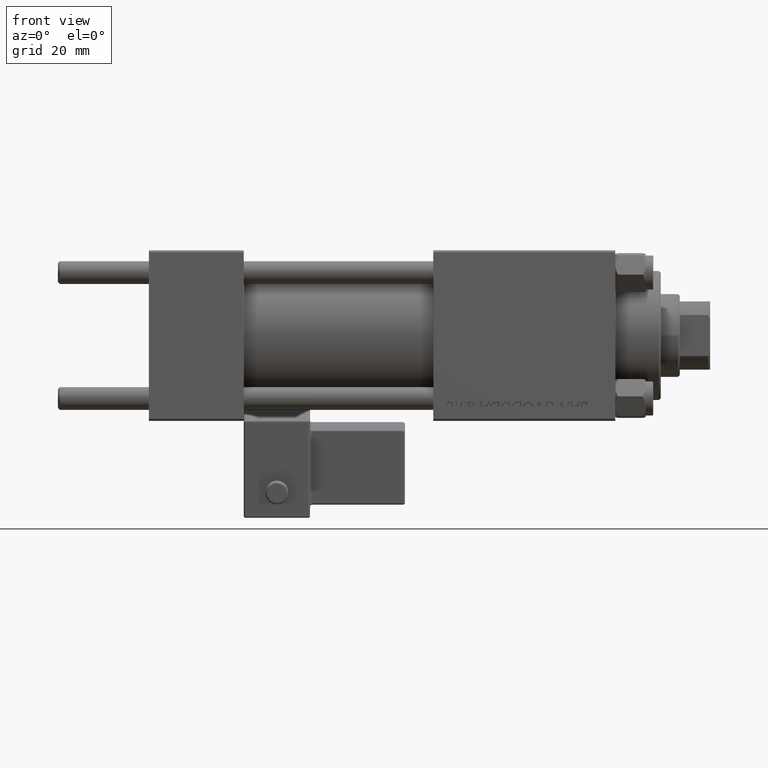
[diagram: clean part render]
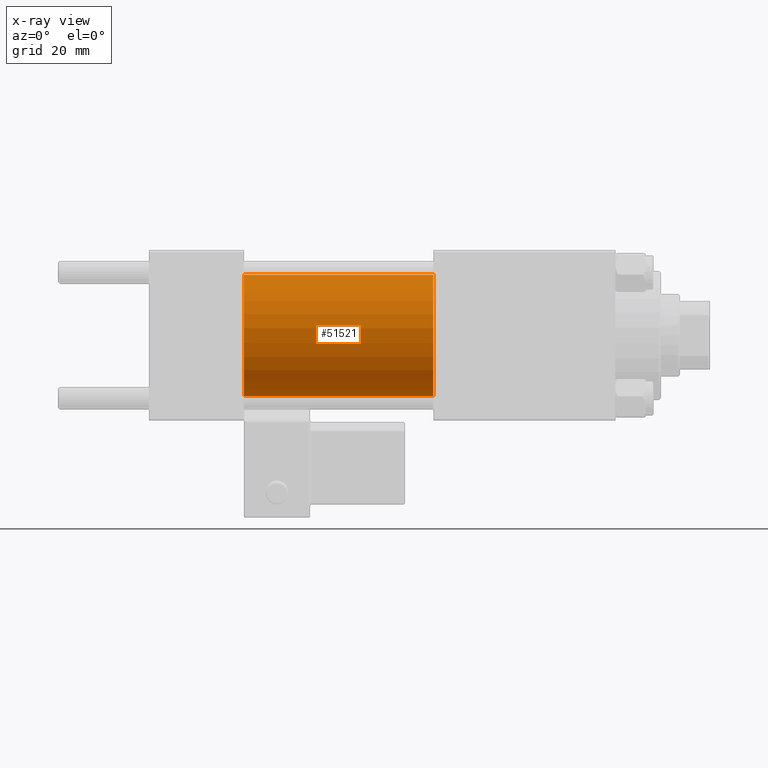
[diagram: x-ray — body ghosted, one internal face saturated and labeled with its STEP entity id]
A machine part, front view, then the same camera in x-ray: the body is ghosted and one INTERNAL B-rep face — a face not visible from any outside direction — is saturated and labeled: STEP entity #51521.
In plain terms, the highlighted cylindrical surface (partial cylindrical patch) has radius 16 mm, axis along (-1, -0, -0).
Its self-contained STEP definition (entity closure, byte-faithful):
#1489 = CARTESIAN_POINT ( 'NONE',  ( 75.00000000000001421, 1.959434878635765131E-15, -16.00000000000000000 ) ) ;
#1533 = ORIENTED_EDGE ( 'NONE', *, *, #41892, .F. ) ;
#4569 = DIRECTION ( 'NONE',  ( -1.000000000000000000, -0.000000000000000000, -0.000000000000000000 ) ) ;
#4871 = CARTESIAN_POINT ( 'NONE',  ( 75.00000000000001421, 0.000000000000000000, 16.00000000000000000 ) ) ;
#4961 = DIRECTION ( 'NONE',  ( -1.000000000000000000, -0.000000000000000000, -0.000000000000000000 ) ) ;
#5727 = CARTESIAN_POINT ( 'NONE',  ( 25.00000000000000000, 0.000000000000000000, 0.000000000000000000 ) ) ;
#5769 = CARTESIAN_POINT ( 'NONE',  ( 75.00000000000001421, 0.000000000000000000, 0.000000000000000000 ) ) ;
#6082 = CIRCLE ( 'NONE', #12831, 16.00000000000000000 ) ;
#7595 = EDGE_CURVE ( 'NONE', #28118, #38773, #13899, .T. ) ;
#7599 = EDGE_CURVE ( 'NONE', #15952, #38773, #17260, .T. ) ;
#9992 = CARTESIAN_POINT ( 'NONE',  ( 25.00000000000000000, 1.959434878635765131E-15, -16.00000000000000000 ) ) ;
#11553 = EDGE_LOOP ( 'NONE', ( #14751, #46764, #46329, #1533 ) ) ;
#12831 = AXIS2_PLACEMENT_3D ( 'NONE', #51514, #15276, #31386 ) ;
#13899 = LINE ( 'NONE', #1489, #17297 ) ;
#14751 = ORIENTED_EDGE ( 'NONE', *, *, #28655, .T. ) ;
#15276 = DIRECTION ( 'NONE',  ( 1.000000000000000000, 0.000000000000000000, 0.000000000000000000 ) ) ;
#15952 = VERTEX_POINT ( 'NONE', #35049 ) ;
#15989 = CARTESIAN_POINT ( 'NONE',  ( 75.00000000000001421, 1.959434878635765131E-15, -16.00000000000000000 ) ) ;
#16369 = VERTEX_POINT ( 'NONE', #4871 ) ;
#17260 = CIRCLE ( 'NONE', #28256, 16.00000000000000000 ) ;
#17297 = VECTOR ( 'NONE', #4961, 1000.000000000000000 ) ;
#17590 = DIRECTION ( 'NONE',  ( 0.000000000000000000, 0.000000000000000000, -1.000000000000000000 ) ) ;
#18144 = DIRECTION ( 'NONE',  ( 0.000000000000000000, 0.000000000000000000, 1.000000000000000000 ) ) ;
#22629 = FACE_OUTER_BOUND ( 'NONE', #11553, .T. ) ;
#24534 = AXIS2_PLACEMENT_3D ( 'NONE', #5769, #38761, #18144 ) ;
#28118 = VERTEX_POINT ( 'NONE', #15989 ) ;
#28256 = AXIS2_PLACEMENT_3D ( 'NONE', #5727, #29236, #17590 ) ;
#28655 = EDGE_CURVE ( 'NONE', #16369, #28118, #6082, .T. ) ;
#29236 = DIRECTION ( 'NONE',  ( 1.000000000000000000, 0.000000000000000000, 0.000000000000000000 ) ) ;
#31386 = DIRECTION ( 'NONE',  ( 0.000000000000000000, 0.000000000000000000, -1.000000000000000000 ) ) ;
#32562 = LINE ( 'NONE', #43951, #39501 ) ;
#35049 = CARTESIAN_POINT ( 'NONE',  ( 25.00000000000000000, 0.000000000000000000, 16.00000000000000000 ) ) ;
#38761 = DIRECTION ( 'NONE',  ( -1.000000000000000000, -0.000000000000000000, -0.000000000000000000 ) ) ;
#38773 = VERTEX_POINT ( 'NONE', #9992 ) ;
#39501 = VECTOR ( 'NONE', #4569, 1000.000000000000000 ) ;
#41892 = EDGE_CURVE ( 'NONE', #16369, #15952, #32562, .T. ) ;
#43951 = CARTESIAN_POINT ( 'NONE',  ( 75.00000000000001421, 0.000000000000000000, 16.00000000000000000 ) ) ;
#46329 = ORIENTED_EDGE ( 'NONE', *, *, #7599, .F. ) ;
#46462 = CYLINDRICAL_SURFACE ( 'NONE', #24534, 16.00000000000000000 ) ;
#46764 = ORIENTED_EDGE ( 'NONE', *, *, #7595, .T. ) ;
#51514 = CARTESIAN_POINT ( 'NONE',  ( 75.00000000000001421, 0.000000000000000000, 0.000000000000000000 ) ) ;
#51521 = ADVANCED_FACE ( 'NONE', ( #22629 ), #46462, .F. ) ;